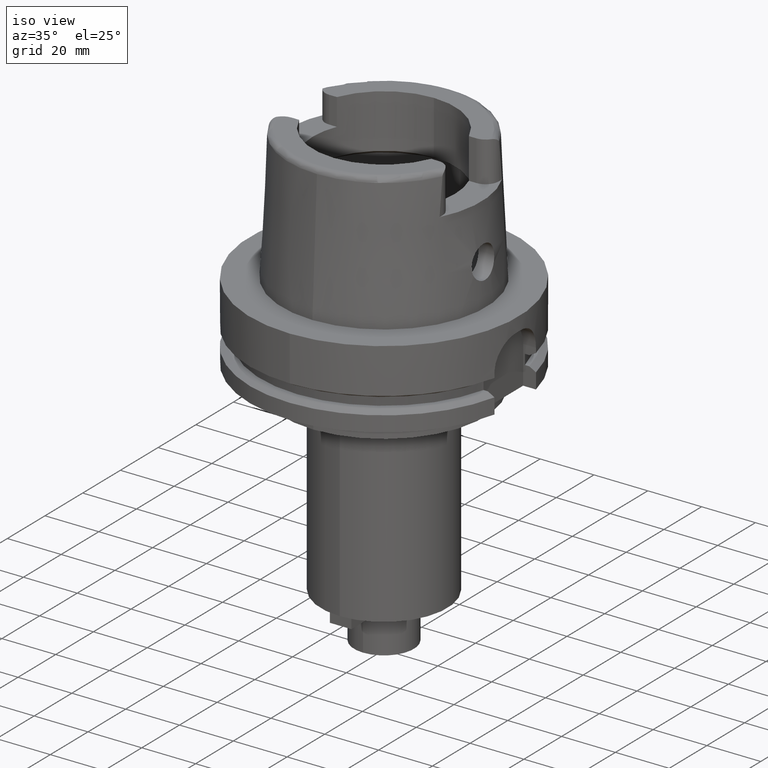
[diagram: clean part render]
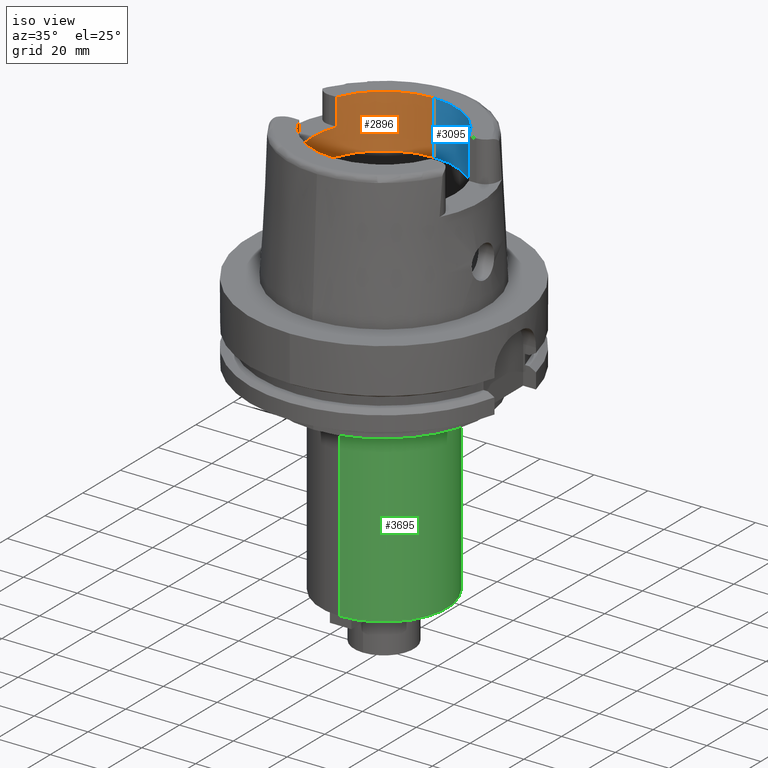
[diagram: same view with three faces highlighted in distinct colors, each labeled with its STEP entity id]
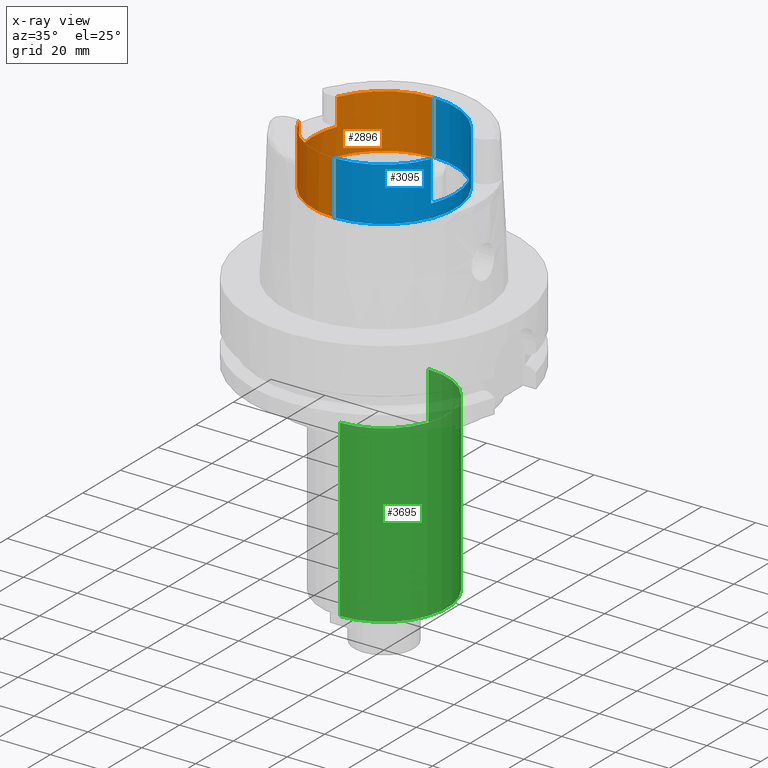
[diagram: x-ray of the same camera — body ghosted, the three highlighted faces saturated]
A machine part, iso view with three faces highlighted in distinct colors.
The next image is the same camera in x-ray (body ghosted, the three faces saturated) — at least one of them is partly hidden behind the body in this view.
Their STEP definitions:

[orange] entity #2896 — the highlighted cylindrical surface (partial cylindrical patch) has radius 26.5 mm, axis along (0, 0, 1).
#50=CARTESIAN_POINT('',(0.E0,0.E0,5.E1));
#51=DIRECTION('',(0.E0,0.E0,1.E0));
#52=DIRECTION('',(0.E0,1.E0,0.E0));
#53=AXIS2_PLACEMENT_3D('',#50,#51,#52);
#79=DIRECTION('',(0.E0,0.E0,1.E0));
#80=VECTOR('',#79,1.E1);
#81=CARTESIAN_POINT('',(-2.453670515778E1,1.001E1,4.E1));
#82=LINE('',#81,#80);
#86=DIRECTION('',(0.E0,4.406108640805E-14,1.E0));
#87=VECTOR('',#86,1.999662432703E1);
#88=CARTESIAN_POINT('',(0.E0,-2.65E1,3.000337567297E1));
#89=LINE('',#88,#87);
#93=DIRECTION('',(0.E0,0.E0,-1.E0));
#94=VECTOR('',#93,1.E1);
#95=CARTESIAN_POINT('',(-2.453670515778E1,-1.001E1,5.E1));
#96=LINE('',#95,#94);
#100=CARTESIAN_POINT('',(0.E0,0.E0,4.E1));
#101=DIRECTION('',(0.E0,0.E0,1.E0));
#102=DIRECTION('',(-9.259134021805E-1,3.777358490566E-1,0.E0));
#103=AXIS2_PLACEMENT_3D('',#100,#101,#102);
#175=CARTESIAN_POINT('',(0.E0,0.E0,5.E1));
#176=DIRECTION('',(0.E0,0.E0,1.E0));
#177=DIRECTION('',(-9.259134021805E-1,-3.777358490566E-1,0.E0));
#178=AXIS2_PLACEMENT_3D('',#175,#176,#177);
#490=DIRECTION('',(0.E0,-4.406108640805E-14,1.E0));
#491=VECTOR('',#490,1.999662432703E1);
#492=CARTESIAN_POINT('',(0.E0,2.65E1,3.000337567297E1));
#493=LINE('',#492,#491);
#563=CARTESIAN_POINT('',(0.E0,0.E0,3.000337567297E1));
#564=DIRECTION('',(0.E0,0.E0,-1.E0));
#565=DIRECTION('',(0.E0,-1.E0,0.E0));
#566=AXIS2_PLACEMENT_3D('',#563,#564,#565);
#2464=CARTESIAN_POINT('',(0.E0,2.65E1,5.E1));
#2465=VERTEX_POINT('',#2464);
#2466=CARTESIAN_POINT('',(-2.453670515778E1,1.001E1,5.E1));
#2467=VERTEX_POINT('',#2466);
#2472=CARTESIAN_POINT('',(-2.453670515778E1,-1.001E1,5.E1));
#2473=VERTEX_POINT('',#2472);
#2474=CARTESIAN_POINT('',(0.E0,-2.65E1,5.E1));
#2475=VERTEX_POINT('',#2474);
#2488=CARTESIAN_POINT('',(-2.453670515778E1,1.001E1,4.E1));
#2489=VERTEX_POINT('',#2488);
#2490=CARTESIAN_POINT('',(-2.453670515778E1,-1.001E1,4.E1));
#2491=VERTEX_POINT('',#2490);
#2492=CARTESIAN_POINT('',(0.E0,2.65E1,3.000337567297E1));
#2493=VERTEX_POINT('',#2492);
#2494=CARTESIAN_POINT('',(0.E0,-2.65E1,3.000337567297E1));
#2495=VERTEX_POINT('',#2494);
#2875=CARTESIAN_POINT('',(0.E0,0.E0,-1.306E2));
#2876=DIRECTION('',(0.E0,0.E0,1.E0));
#2877=DIRECTION('',(0.E0,1.E0,0.E0));
#2878=AXIS2_PLACEMENT_3D('',#2875,#2876,#2877);
#2879=CYLINDRICAL_SURFACE('',#2878,2.65E1);
#2881=ORIENTED_EDGE('',*,*,#2880,.F.);
#2882=ORIENTED_EDGE('',*,*,#2867,.T.);
#2883=ORIENTED_EDGE('',*,*,#2837,.F.);
#2885=ORIENTED_EDGE('',*,*,#2884,.F.);
#2887=ORIENTED_EDGE('',*,*,#2886,.F.);
#2889=ORIENTED_EDGE('',*,*,#2888,.T.);
#2891=ORIENTED_EDGE('',*,*,#2890,.F.);
#2893=ORIENTED_EDGE('',*,*,#2892,.T.);
#2894=EDGE_LOOP('',(#2881,#2882,#2883,#2885,#2887,#2889,#2891,#2893));
#2895=FACE_OUTER_BOUND('',#2894,.F.);
#54=CIRCLE('',#53,2.65E1);
#104=CIRCLE('',#103,2.65E1);
#179=CIRCLE('',#178,2.65E1);
#567=CIRCLE('',#566,2.65E1);
#2837=EDGE_CURVE('',#2465,#2467,#54,.T.);
#2867=EDGE_CURVE('',#2489,#2467,#82,.T.);
#2880=EDGE_CURVE('',#2489,#2491,#104,.T.);
#2884=EDGE_CURVE('',#2493,#2465,#493,.T.);
#2886=EDGE_CURVE('',#2495,#2493,#567,.T.);
#2888=EDGE_CURVE('',#2495,#2475,#89,.T.);
#2890=EDGE_CURVE('',#2473,#2475,#179,.T.);
#2892=EDGE_CURVE('',#2473,#2491,#96,.T.);
#2896=ADVANCED_FACE('',(#2895),#2879,.F.);

[blue] entity #3095 — the highlighted cylindrical surface (partial cylindrical patch) has radius 26.5 mm, axis along (0, 0, 1).
#42=CARTESIAN_POINT('',(0.E0,0.E0,5.E1));
#43=DIRECTION('',(0.E0,0.E0,1.E0));
#44=DIRECTION('',(9.259134021805E-1,3.777358490566E-1,0.E0));
#45=AXIS2_PLACEMENT_3D('',#42,#43,#44);
#86=DIRECTION('',(0.E0,4.406108640805E-14,1.E0));
#87=VECTOR('',#86,1.999662432703E1);
#88=CARTESIAN_POINT('',(0.E0,-2.65E1,3.000337567297E1));
#89=LINE('',#88,#87);
#183=CARTESIAN_POINT('',(0.E0,0.E0,5.E1));
#184=DIRECTION('',(0.E0,0.E0,1.E0));
#185=DIRECTION('',(0.E0,-1.E0,0.E0));
#186=AXIS2_PLACEMENT_3D('',#183,#184,#185);
#423=CARTESIAN_POINT('',(0.E0,0.E0,3.5E1));
#424=DIRECTION('',(0.E0,0.E0,1.E0));
#425=DIRECTION('',(9.259134021805E-1,-3.777358490566E-1,0.E0));
#426=AXIS2_PLACEMENT_3D('',#423,#424,#425);
#483=DIRECTION('',(0.E0,0.E0,1.E0));
#484=VECTOR('',#483,1.5E1);
#485=CARTESIAN_POINT('',(2.453670515778E1,-1.001E1,3.5E1));
#486=LINE('',#485,#484);
#490=DIRECTION('',(0.E0,-4.406108640805E-14,1.E0));
#491=VECTOR('',#490,1.999662432703E1);
#492=CARTESIAN_POINT('',(0.E0,2.65E1,3.000337567297E1));
#493=LINE('',#492,#491);
#497=DIRECTION('',(0.E0,0.E0,-1.E0));
#498=VECTOR('',#497,1.5E1);
#499=CARTESIAN_POINT('',(2.453670515778E1,1.001E1,5.E1));
#500=LINE('',#499,#498);
#532=CARTESIAN_POINT('',(0.E0,0.E0,3.000337567297E1));
#533=DIRECTION('',(0.E0,0.E0,-1.E0));
#534=DIRECTION('',(0.E0,1.E0,0.E0));
#535=AXIS2_PLACEMENT_3D('',#532,#533,#534);
#2462=CARTESIAN_POINT('',(2.453670515778E1,1.001E1,5.E1));
#2463=VERTEX_POINT('',#2462);
#2464=CARTESIAN_POINT('',(0.E0,2.65E1,5.E1));
#2465=VERTEX_POINT('',#2464);
#2474=CARTESIAN_POINT('',(0.E0,-2.65E1,5.E1));
#2475=VERTEX_POINT('',#2474);
#2476=CARTESIAN_POINT('',(2.453670515778E1,-1.001E1,5.E1));
#2477=VERTEX_POINT('',#2476);
#2492=CARTESIAN_POINT('',(0.E0,2.65E1,3.000337567297E1));
#2493=VERTEX_POINT('',#2492);
#2494=CARTESIAN_POINT('',(0.E0,-2.65E1,3.000337567297E1));
#2495=VERTEX_POINT('',#2494);
#2528=CARTESIAN_POINT('',(2.453670515778E1,-1.001E1,3.5E1));
#2529=CARTESIAN_POINT('',(2.453670515778E1,1.001E1,3.5E1));
#2530=VERTEX_POINT('',#2528);
#2531=VERTEX_POINT('',#2529);
#3077=CARTESIAN_POINT('',(0.E0,0.E0,-1.306E2));
#3078=DIRECTION('',(0.E0,0.E0,1.E0));
#3079=DIRECTION('',(0.E0,1.E0,0.E0));
#3080=AXIS2_PLACEMENT_3D('',#3077,#3078,#3079);
#3081=CYLINDRICAL_SURFACE('',#3080,2.65E1);
#3082=ORIENTED_EDGE('',*,*,#3059,.F.);
#3084=ORIENTED_EDGE('',*,*,#3083,.T.);
#3085=ORIENTED_EDGE('',*,*,#2941,.F.);
#3086=ORIENTED_EDGE('',*,*,#2888,.F.);
#3088=ORIENTED_EDGE('',*,*,#3087,.F.);
#3089=ORIENTED_EDGE('',*,*,#2884,.T.);
#3090=ORIENTED_EDGE('',*,*,#2835,.F.);
#3092=ORIENTED_EDGE('',*,*,#3091,.T.);
#3093=EDGE_LOOP('',(#3082,#3084,#3085,#3086,#3088,#3089,#3090,#3092));
#3094=FACE_OUTER_BOUND('',#3093,.F.);
#46=CIRCLE('',#45,2.65E1);
#187=CIRCLE('',#186,2.65E1);
#427=CIRCLE('',#426,2.65E1);
#536=CIRCLE('',#535,2.65E1);
#2835=EDGE_CURVE('',#2463,#2465,#46,.T.);
#2884=EDGE_CURVE('',#2493,#2465,#493,.T.);
#2888=EDGE_CURVE('',#2495,#2475,#89,.T.);
#2941=EDGE_CURVE('',#2475,#2477,#187,.T.);
#3059=EDGE_CURVE('',#2530,#2531,#427,.T.);
#3083=EDGE_CURVE('',#2530,#2477,#486,.T.);
#3087=EDGE_CURVE('',#2493,#2495,#536,.T.);
#3091=EDGE_CURVE('',#2463,#2531,#500,.T.);
#3095=ADVANCED_FACE('',(#3094),#3081,.F.);

[green] entity #3695 — the highlighted cylindrical surface (partial cylindrical patch) has radius 23.5 mm, axis along (0, 0, 1).
#1139=CARTESIAN_POINT('',(0.E0,0.E0,-1.05E2));
#1140=DIRECTION('',(0.E0,0.E0,1.E0));
#1141=DIRECTION('',(0.E0,-1.E0,0.E0));
#1142=AXIS2_PLACEMENT_3D('',#1139,#1140,#1141);
#1199=DIRECTION('',(0.E0,0.E0,-1.E0));
#1200=VECTOR('',#1199,6.5E1);
#1201=CARTESIAN_POINT('',(0.E0,2.35E1,-4.E1));
#1202=LINE('',#1201,#1200);
#1206=DIRECTION('',(0.E0,0.E0,-1.E0));
#1207=VECTOR('',#1206,6.5E1);
#1208=CARTESIAN_POINT('',(0.E0,-2.35E1,-4.E1));
#1209=LINE('',#1208,#1207);
#1235=CARTESIAN_POINT('',(0.E0,0.E0,-4.E1));
#1236=DIRECTION('',(0.E0,0.E0,-1.E0));
#1237=DIRECTION('',(0.E0,1.E0,0.E0));
#1238=AXIS2_PLACEMENT_3D('',#1235,#1236,#1237);
#2622=CARTESIAN_POINT('',(0.E0,-2.35E1,-1.05E2));
#2623=CARTESIAN_POINT('',(0.E0,2.35E1,-1.05E2));
#2624=VERTEX_POINT('',#2622);
#2625=VERTEX_POINT('',#2623);
#2642=CARTESIAN_POINT('',(0.E0,2.35E1,-4.E1));
#2643=VERTEX_POINT('',#2642);
#2644=CARTESIAN_POINT('',(0.E0,-2.35E1,-4.E1));
#2645=VERTEX_POINT('',#2644);
#3681=CARTESIAN_POINT('',(0.E0,0.E0,-1.306E2));
#3682=DIRECTION('',(0.E0,0.E0,1.E0));
#3683=DIRECTION('',(0.E0,1.E0,0.E0));
#3684=AXIS2_PLACEMENT_3D('',#3681,#3682,#3683);
#3685=CYLINDRICAL_SURFACE('',#3684,2.35E1);
#3687=ORIENTED_EDGE('',*,*,#3686,.T.);
#3688=ORIENTED_EDGE('',*,*,#3650,.F.);
#3690=ORIENTED_EDGE('',*,*,#3689,.F.);
#3692=ORIENTED_EDGE('',*,*,#3691,.F.);
#3693=EDGE_LOOP('',(#3687,#3688,#3690,#3692));
#3694=FACE_OUTER_BOUND('',#3693,.F.);
#1143=CIRCLE('',#1142,2.35E1);
#1239=CIRCLE('',#1238,2.35E1);
#3650=EDGE_CURVE('',#2624,#2625,#1143,.T.);
#3686=EDGE_CURVE('',#2643,#2625,#1202,.T.);
#3689=EDGE_CURVE('',#2645,#2624,#1209,.T.);
#3691=EDGE_CURVE('',#2643,#2645,#1239,.T.);
#3695=ADVANCED_FACE('',(#3694),#3685,.T.);